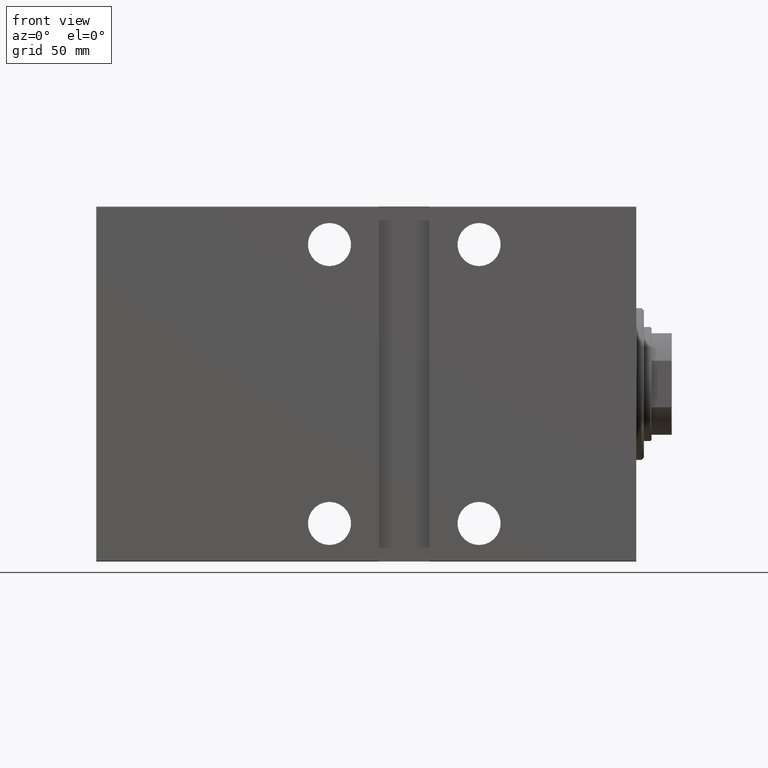
[diagram: clean part render]
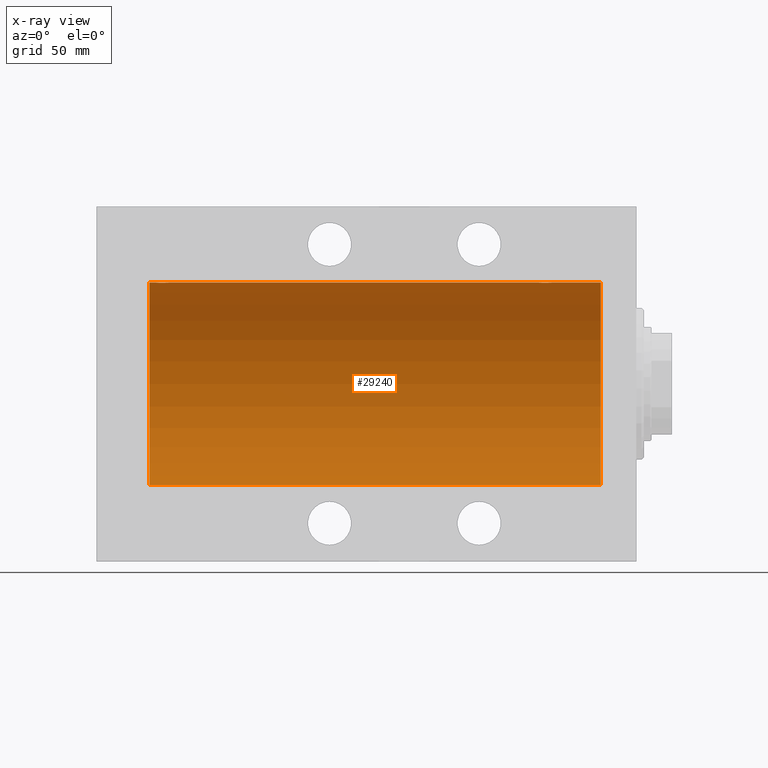
[diagram: x-ray — body ghosted, one internal face saturated and labeled with its STEP entity id]
A machine part, front view, then the same camera in x-ray: the body is ghosted and one INTERNAL B-rep face — a face not visible from any outside direction — is saturated and labeled: STEP entity #29240.
In plain terms, the highlighted cylindrical surface (partial cylindrical patch) has radius 40 mm, axis along (1, 0, -0).
Its self-contained STEP definition (entity closure, byte-faithful):
#107 = VERTEX_POINT ( 'NONE', #42869 ) ;
#774 = DIRECTION ( 'NONE',  ( -1.000000000000000000, 0.000000000000000000, 0.000000000000000000 ) ) ;
#1022 = CARTESIAN_POINT ( 'NONE',  ( 184.0000000000000000, -1.482427413091325385E-23, 40.00000000000000000 ) ) ;
#1633 = CARTESIAN_POINT ( 'NONE',  ( 34.16955177177597847, -2.384933850258104560, 39.92898715513240404 ) ) ;
#1664 = CARTESIAN_POINT ( 'NONE',  ( 188.9813627951422745, -2.261082456166700450, 39.93628274425758917 ) ) ;
#2070 = CARTESIAN_POINT ( 'NONE',  ( 192.0000000000000000, 0.000000000000000000, 40.00000000000000000 ) ) ;
#2315 = CARTESIAN_POINT ( 'NONE',  ( 185.4955691708653376, -2.602909538701748016, 39.91537030566259858 ) ) ;
#2374 = AXIS2_PLACEMENT_3D ( 'NONE', #30961, #3919, #27618 ) ;
#2534 = CARTESIAN_POINT ( 'NONE',  ( 188.3285364474629375, -2.696981015661912728, 39.90904630908467965 ) ) ;
#2853 = VECTOR ( 'NONE', #21208, 1000.000000000000000 ) ;
#3425 = DIRECTION ( 'NONE',  ( -1.000000000000000000, 0.000000000000000000, 0.000000000000000000 ) ) ;
#3919 = DIRECTION ( 'NONE',  ( -1.000000000000000000, -0.000000000000000000, -0.000000000000000000 ) ) ;
#4513 = CARTESIAN_POINT ( 'NONE',  ( 37.32853644746298016, -2.696981015661922054, 39.90904630908468675 ) ) ;
#4742 = CARTESIAN_POINT ( 'NONE',  ( 38.25829670320502629, -1.984537326394299805, 39.95097977400577349 ) ) ;
#5383 = CARTESIAN_POINT ( 'NONE',  ( 33.39566400087917231, -1.502129635934005503, 39.97212271185186694 ) ) ;
#5555 = VERTEX_POINT ( 'NONE', #19477 ) ;
#5638 = CARTESIAN_POINT ( 'NONE',  ( 184.7390238300526448, -1.981471132463180407, 39.95113231465140302 ) ) ;
#5836 = EDGE_CURVE ( 'NONE', #5555, #107, #21661, .T. ) ;
#6183 = B_SPLINE_CURVE_WITH_KNOTS ( 'NONE', 3,
 ( #8066, #32425, #28869, #41962, #38637, #38419, #5383, #24658, #21341, #34877, #1633, #8280, #38199, #24871, #21557, #21982, #25092, #18662, #18453, #7847, #31989, #4513, #28215, #35099, #14916, #4742, #18242, #39063, #32201, #15133, #31774, #8491 ),
 .UNSPECIFIED., .F., .F.,
 ( 4, 2, 2, 2, 2, 2, 2, 2, 2, 2, 2, 2, 2, 2, 2, 4 ),
 ( 0.009382660366305115712, 0.009968941372944153251, 0.01055522237958318905, 0.01114150338622222659, 0.01172778439286126240, 0.01231406539950029994, 0.01290034640613933747, 0.01348662741277837501, 0.01407290841941741255, 0.01465918942605645009, 0.01524547043269548589, 0.01583175143933452170, 0.01641803244597355924, 0.01700431345261259677, 0.01759059445925163084, 0.01876315647252970592 ),
 .UNSPECIFIED. ) ;
#6993 = CARTESIAN_POINT ( 'NONE',  ( 192.0000000000000000, 0.000000000000000000, 40.00000000000000000 ) ) ;
#6996 = ORIENTED_EDGE ( 'NONE', *, *, #18755, .F. ) ;
#7266 = CARTESIAN_POINT ( 'NONE',  ( 192.0000000000000000, 4.898587196589413026E-15, -40.00000000000000000 ) ) ;
#7847 = CARTESIAN_POINT ( 'NONE',  ( 36.77455678826340346, -2.904869018727219476, 39.89440043036668726 ) ) ;
#8066 = CARTESIAN_POINT ( 'NONE',  ( 32.99999999999999289, -1.483413489222851649E-23, 40.00000000000000000 ) ) ;
#8280 = CARTESIAN_POINT ( 'NONE',  ( 34.49556917086533048, -2.602909538701751568, 39.91537030566259148 ) ) ;
#8491 = CARTESIAN_POINT ( 'NONE',  ( 39.00000000000000000, 1.790049141998953147E-15, 40.00000000000000000 ) ) ;
#8519 = CARTESIAN_POINT ( 'NONE',  ( 185.6677573113414041, -2.695129988695737389, 39.90917164320281074 ) ) ;
#8737 = CARTESIAN_POINT ( 'NONE',  ( 189.3825168091146907, -1.833695109615715024, 39.95828327492364451 ) ) ;
#8937 = ORIENTED_EDGE ( 'NONE', *, *, #18341, .F. ) ;
#9722 = CARTESIAN_POINT ( 'NONE',  ( 192.0000000000000000, 0.000000000000000000, 40.00000000000000000 ) ) ;
#11244 = LINE ( 'NONE', #7266, #2853 ) ;
#11831 = CARTESIAN_POINT ( 'NONE',  ( 184.0189812288907945, -0.3904143323715943414, 39.99856256910221219 ) ) ;
#12046 = CARTESIAN_POINT ( 'NONE',  ( 190.0000000000000000, 2.131082946097784527E-15, 40.00000000000000000 ) ) ;
#12056 = CARTESIAN_POINT ( 'NONE',  ( 190.0000000000000000, 2.131082946097784527E-15, 40.00000000000000000 ) ) ;
#12373 = ORIENTED_EDGE ( 'NONE', *, *, #5836, .T. ) ;
#12488 = CARTESIAN_POINT ( 'NONE',  ( 189.2582967032051044, -1.984537326394301138, 39.95097977400578770 ) ) ;
#12828 = B_SPLINE_CURVE_WITH_KNOTS ( 'NONE', 3,
 ( #1022, #25342, #11831, #43095, #38665, #19129, #25555, #32670, #5638, #22227, #32455, #2315, #8519, #15812, #29557, #35767, #42870, #28900, #38884, #35986, #22009, #2534, #36206, #29330, #1664, #12488, #8737, #16037, #15596, #35555, #39544, #12046 ),
 .UNSPECIFIED., .F., .F.,
 ( 4, 2, 2, 2, 2, 2, 2, 2, 2, 2, 2, 2, 2, 2, 2, 4 ),
 ( 0.009382660366305108773, 0.009968941372944142842, 0.01055522237958317691, 0.01114150338622221272, 0.01172778439286124678, 0.01231406539950028085, 0.01290034640613931492, 0.01348662741277835073, 0.01407290841941738480, 0.01465918942605641886, 0.01524547043269545293, 0.01583175143933448700, 0.01641803244597352107, 0.01700431345261255861, 0.01759059445925158921, 0.01876315647252969204 ),
 .UNSPECIFIED. ) ;
#13213 = FACE_OUTER_BOUND ( 'NONE', #21221, .T. ) ;
#13245 = DIRECTION ( 'NONE',  ( -1.000000000000000000, -0.000000000000000000, -0.000000000000000000 ) ) ;
#13518 = ORIENTED_EDGE ( 'NONE', *, *, #31166, .T. ) ;
#14916 = CARTESIAN_POINT ( 'NONE',  ( 37.98136279514229585, -2.261082456166699561, 39.93628274425758917 ) ) ;
#15133 = CARTESIAN_POINT ( 'NONE',  ( 38.92026174991647736, -0.7903958539027343688, 39.99381900068937767 ) ) ;
#15596 = CARTESIAN_POINT ( 'NONE',  ( 189.6953700770843625, -1.331594428131637642, 39.97823692017209396 ) ) ;
#15812 = CARTESIAN_POINT ( 'NONE',  ( 186.0306165810553978, -2.845855236045340408, 39.89870693240650468 ) ) ;
#16037 = CARTESIAN_POINT ( 'NONE',  ( 189.6018872812850020, -1.506322235190780567, 39.97196309111976831 ) ) ;
#16218 = DIRECTION ( 'NONE',  ( -1.000000000000000000, -0.000000000000000000, -0.000000000000000000 ) ) ;
#16581 = LINE ( 'NONE', #9722, #32620 ) ;
#17114 = VERTEX_POINT ( 'NONE', #37505 ) ;
#17329 = EDGE_CURVE ( 'NONE', #23650, #5555, #11244, .T. ) ;
#17672 = VERTEX_POINT ( 'NONE', #6993 ) ;
#18130 = AXIS2_PLACEMENT_3D ( 'NONE', #30670, #3425, #19803 ) ;
#18242 = CARTESIAN_POINT ( 'NONE',  ( 38.38251680911464092, -1.833695109615710361, 39.95828327492363741 ) ) ;
#18341 = EDGE_CURVE ( 'NONE', #17672, #43264, #16581, .T. ) ;
#18453 = CARTESIAN_POINT ( 'NONE',  ( 36.39109692509333627, -2.980812880639895468, 39.88879797994688658 ) ) ;
#18662 = CARTESIAN_POINT ( 'NONE',  ( 36.19560531073086196, -3.000157693440633988, 39.88732948994960026 ) ) ;
#18755 = EDGE_CURVE ( 'NONE', #33378, #107, #23429, .T. ) ;
#18878 = LINE ( 'NONE', #2070, #34965 ) ;
#19129 = CARTESIAN_POINT ( 'NONE',  ( 184.3027865941911614, -1.327859336864141371, 39.97836169682016561 ) ) ;
#19477 = CARTESIAN_POINT ( 'NONE',  ( 14.00000000000001243, 4.898587196589413026E-15, -40.00000000000000000 ) ) ;
#19803 = DIRECTION ( 'NONE',  ( 0.000000000000000000, 0.000000000000000000, 1.000000000000000000 ) ) ;
#20452 = CARTESIAN_POINT ( 'NONE',  ( 192.0000000000000000, 0.000000000000000000, 0.000000000000000000 ) ) ;
#20738 = CYLINDRICAL_SURFACE ( 'NONE', #2374, 40.00000000000000000 ) ;
#20964 = EDGE_CURVE ( 'NONE', #23650, #17672, #34809, .T. ) ;
#21208 = DIRECTION ( 'NONE',  ( -1.000000000000000000, -0.000000000000000000, -0.000000000000000000 ) ) ;
#21221 = EDGE_LOOP ( 'NONE', ( #25299, #25529, #12373, #6996, #32634, #29268, #13518, #8937 ) ) ;
#21341 = CARTESIAN_POINT ( 'NONE',  ( 33.73902383005258088, -1.981471132463167084, 39.95113231465138881 ) ) ;
#21557 = CARTESIAN_POINT ( 'NONE',  ( 35.22130476584258219, -2.903766417398234267, 39.89448096967571189 ) ) ;
#21661 = CIRCLE ( 'NONE', #18130, 40.00000000000000000 ) ;
#21982 = CARTESIAN_POINT ( 'NONE',  ( 35.60477516546423260, -2.980272303779546661, 39.88883864243167920 ) ) ;
#22009 = CARTESIAN_POINT ( 'NONE',  ( 187.9648932585351702, -2.847401743820445752, 39.89859630624609110 ) ) ;
#22227 = CARTESIAN_POINT ( 'NONE',  ( 185.0153855218773060, -2.258217541132913730, 39.93644519243654400 ) ) ;
#22843 = VERTEX_POINT ( 'NONE', #37181 ) ;
#23429 = LINE ( 'NONE', #33651, #30493 ) ;
#23650 = VERTEX_POINT ( 'NONE', #36969 ) ;
#24658 = CARTESIAN_POINT ( 'NONE',  ( 33.61492399084646365, -1.830402106103518278, 39.95843610133494650 ) ) ;
#24871 = CARTESIAN_POINT ( 'NONE',  ( 35.03061658105536225, -2.845855236045343073, 39.89870693240651889 ) ) ;
#25092 = CARTESIAN_POINT ( 'NONE',  ( 35.79958713980801832, -2.999840380514740890, 39.88735335562824247 ) ) ;
#25299 = ORIENTED_EDGE ( 'NONE', *, *, #20964, .F. ) ;
#25342 = CARTESIAN_POINT ( 'NONE',  ( 183.9999999999999432, -0.1957844162750518868, 39.99999999999999289 ) ) ;
#25529 = ORIENTED_EDGE ( 'NONE', *, *, #17329, .T. ) ;
#25555 = CARTESIAN_POINT ( 'NONE',  ( 184.3956640008791794, -1.502129635933996399, 39.97212271185186694 ) ) ;
#27343 = CARTESIAN_POINT ( 'NONE',  ( 32.99999999999999289, -1.483413489222851649E-23, 40.00000000000000000 ) ) ;
#27523 = EDGE_CURVE ( 'NONE', #33378, #17114, #6183, .T. ) ;
#27589 = EDGE_CURVE ( 'NONE', #22843, #17114, #18878, .T. ) ;
#27618 = DIRECTION ( 'NONE',  ( 0.000000000000000000, 0.000000000000000000, 1.000000000000000000 ) ) ;
#28215 = CARTESIAN_POINT ( 'NONE',  ( 37.50088468404035069, -2.604941918888307395, 39.91523680494982784 ) ) ;
#28869 = CARTESIAN_POINT ( 'NONE',  ( 33.01898122889073051, -0.3904143323715981717, 39.99856256910221219 ) ) ;
#28900 = CARTESIAN_POINT ( 'NONE',  ( 187.1956053107308833, -3.000157693440628659, 39.88732948994959315 ) ) ;
#29240 = ADVANCED_FACE ( 'NONE', ( #13213 ), #20738, .F. ) ;
#29268 = ORIENTED_EDGE ( 'NONE', *, *, #27589, .F. ) ;
#29330 = CARTESIAN_POINT ( 'NONE',  ( 188.8269018463240343, -2.387636253591811197, 39.92882473497731866 ) ) ;
#29557 = CARTESIAN_POINT ( 'NONE',  ( 186.2213047658426319, -2.903766417398223609, 39.89448096967572610 ) ) ;
#30493 = VECTOR ( 'NONE', #42990, 1000.000000000000000 ) ;
#30668 = DIRECTION ( 'NONE',  ( 0.000000000000000000, 0.000000000000000000, 1.000000000000000000 ) ) ;
#30670 = CARTESIAN_POINT ( 'NONE',  ( 14.00000000000001243, 0.000000000000000000, 0.000000000000000000 ) ) ;
#30961 = CARTESIAN_POINT ( 'NONE',  ( 192.0000000000000000, 0.000000000000000000, 0.000000000000000000 ) ) ;
#31166 = EDGE_CURVE ( 'NONE', #22843, #43264, #12828, .T. ) ;
#31774 = CARTESIAN_POINT ( 'NONE',  ( 38.99999999999999289, -0.3964922677423693975, 39.99999999999998579 ) ) ;
#31989 = CARTESIAN_POINT ( 'NONE',  ( 36.96489325853513463, -2.847401743820453746, 39.89859630624607689 ) ) ;
#32201 = CARTESIAN_POINT ( 'NONE',  ( 38.69537007708436249, -1.331594428131636754, 39.97823692017208685 ) ) ;
#32425 = CARTESIAN_POINT ( 'NONE',  ( 32.99999999999998579, -0.1957844162750551620, 40.00000000000000000 ) ) ;
#32455 = CARTESIAN_POINT ( 'NONE',  ( 185.1695517717760424, -2.384933850258101895, 39.92898715513241115 ) ) ;
#32620 = VECTOR ( 'NONE', #13245, 1000.000000000000000 ) ;
#32634 = ORIENTED_EDGE ( 'NONE', *, *, #27523, .T. ) ;
#32670 = CARTESIAN_POINT ( 'NONE',  ( 184.6149239908464494, -1.830402106103509174, 39.95843610133493939 ) ) ;
#33378 = VERTEX_POINT ( 'NONE', #27343 ) ;
#33651 = CARTESIAN_POINT ( 'NONE',  ( 192.0000000000000000, 0.000000000000000000, 40.00000000000000000 ) ) ;
#34809 = CIRCLE ( 'NONE', #40462, 40.00000000000000000 ) ;
#34877 = CARTESIAN_POINT ( 'NONE',  ( 34.01538552187719944, -2.258217541132902628, 39.93644519243653690 ) ) ;
#34965 = VECTOR ( 'NONE', #16218, 1000.000000000000000 ) ;
#35099 = CARTESIAN_POINT ( 'NONE',  ( 37.82690184632410535, -2.387636253591812530, 39.92882473497732576 ) ) ;
#35555 = CARTESIAN_POINT ( 'NONE',  ( 189.9202617499164774, -0.7903958539027342578, 39.99381900068937057 ) ) ;
#35767 = CARTESIAN_POINT ( 'NONE',  ( 186.6047751654642752, -2.980272303779536891, 39.88883864243170052 ) ) ;
#35986 = CARTESIAN_POINT ( 'NONE',  ( 187.7745567882634248, -2.904869018727211483, 39.89440043036669437 ) ) ;
#36206 = CARTESIAN_POINT ( 'NONE',  ( 188.5008846840403578, -2.604941918888304286, 39.91523680494982784 ) ) ;
#36969 = CARTESIAN_POINT ( 'NONE',  ( 192.0000000000000000, 4.898587196589413026E-15, -40.00000000000000000 ) ) ;
#37181 = CARTESIAN_POINT ( 'NONE',  ( 184.0000000000000000, -1.482427413091325385E-23, 40.00000000000000000 ) ) ;
#37505 = CARTESIAN_POINT ( 'NONE',  ( 39.00000000000000000, 1.790049141998953147E-15, 40.00000000000000000 ) ) ;
#38199 = CARTESIAN_POINT ( 'NONE',  ( 34.66775731134134730, -2.695129988695738721, 39.90917164320281074 ) ) ;
#38419 = CARTESIAN_POINT ( 'NONE',  ( 33.30278659419118270, -1.327859336864148254, 39.97836169682017982 ) ) ;
#38637 = CARTESIAN_POINT ( 'NONE',  ( 33.15334726986861824, -0.9668189122103377775, 39.98872185468385254 ) ) ;
#38665 = CARTESIAN_POINT ( 'NONE',  ( 184.1533472698685898, -0.9668189122103303390, 39.98872185468384544 ) ) ;
#38884 = CARTESIAN_POINT ( 'NONE',  ( 187.3910969250933078, -2.980812880639886586, 39.88879797994687948 ) ) ;
#39063 = CARTESIAN_POINT ( 'NONE',  ( 38.60188728128492386, -1.506322235190776349, 39.97196309111974699 ) ) ;
#39544 = CARTESIAN_POINT ( 'NONE',  ( 190.0000000000000284, -0.3964922677423697306, 40.00000000000001421 ) ) ;
#40462 = AXIS2_PLACEMENT_3D ( 'NONE', #20452, #774, #30668 ) ;
#41962 = CARTESIAN_POINT ( 'NONE',  ( 33.09574826348646326, -0.7773146824711036906, 39.99291453282343412 ) ) ;
#42869 = CARTESIAN_POINT ( 'NONE',  ( 14.00000000000001243, 0.000000000000000000, 40.00000000000000000 ) ) ;
#42870 = CARTESIAN_POINT ( 'NONE',  ( 186.7995871398079828, -2.999840380514732896, 39.88735335562824957 ) ) ;
#42990 = DIRECTION ( 'NONE',  ( -1.000000000000000000, -0.000000000000000000, -0.000000000000000000 ) ) ;
#43095 = CARTESIAN_POINT ( 'NONE',  ( 184.0957482634864846, -0.7773146824710983616, 39.99291453282344122 ) ) ;
#43264 = VERTEX_POINT ( 'NONE', #12056 ) ;